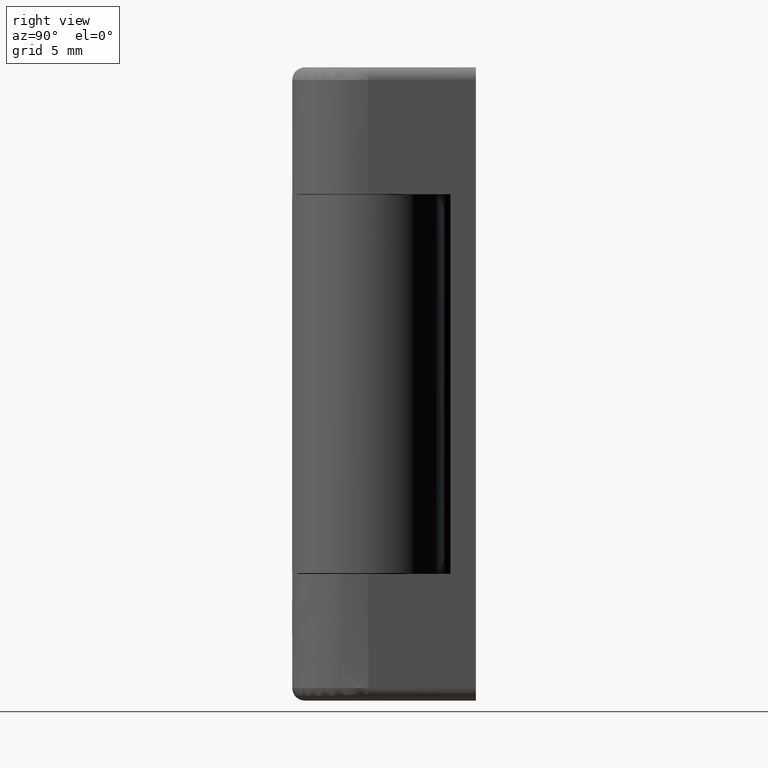
[diagram: clean part render]
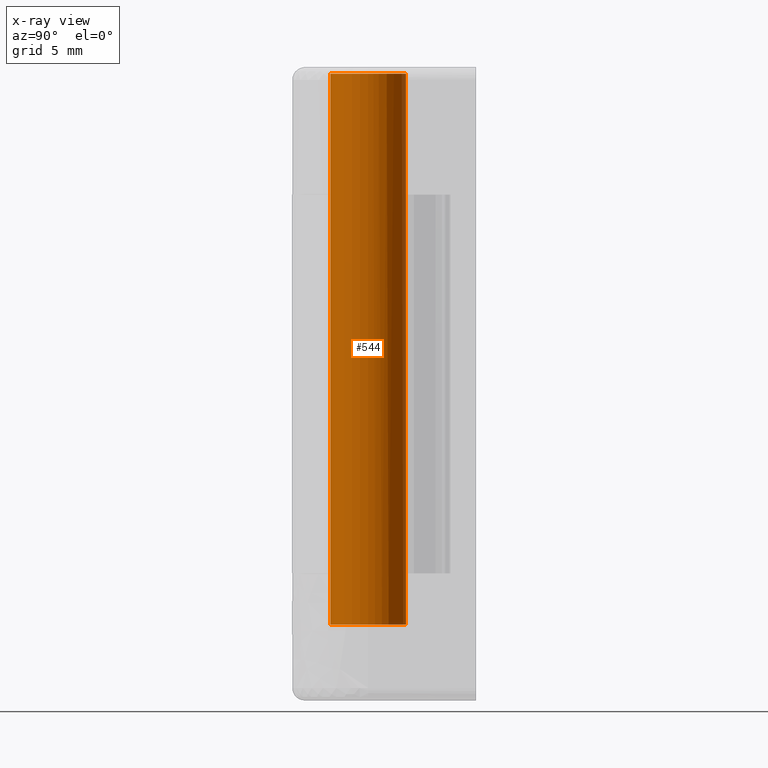
[diagram: x-ray — body ghosted, one internal face saturated and labeled with its STEP entity id]
A machine part, right view, then the same camera in x-ray: the body is ghosted and one INTERNAL B-rep face — a face not visible from any outside direction — is saturated and labeled: STEP entity #544.
In plain terms, the highlighted face is a freeform B-spline surface patch.
Its self-contained STEP definition (entity closure, byte-faithful):
#70=CARTESIAN_POINT('',(2.208236022317948,2.030687979414606,49.499999999999737));
#71=VERTEX_POINT('',#70);
#72=CARTESIAN_POINT('',(3.0,0.0,49.500000000000000));
#73=VERTEX_POINT('',#72);
#74=CARTESIAN_POINT('',(2.208236022317949,2.030687979414606,49.499999999999737));
#75=CARTESIAN_POINT('',(3.000000000000000,1.169698130463886,49.499999999999993));
#76=CARTESIAN_POINT('',(3.0,0.0,49.500000000000000));
#84=(BOUNDED_CURVE()B_SPLINE_CURVE(2,(#74,#75,#76),.UNSPECIFIED.,.F.,.U.)B_SPLINE_CURVE_WITH_KNOTS((3,3),(0.381317214287513,0.500000000000000),.UNSPECIFIED.)CURVE()GEOMETRIC_REPRESENTATION_ITEM()RATIONAL_B_SPLINE_CURVE((0.853927424103483,0.860954467499689,1.0))REPRESENTATION_ITEM(''));
#85=EDGE_CURVE('',#71,#73,#84,.T.);
#143=CARTESIAN_POINT('',(0.026179607174745,2.999885769279031,49.499999999907558));
#144=VERTEX_POINT('',#143);
#150=CARTESIAN_POINT('',(-0.183145618649427,2.994404395262857,49.500000000000000));
#151=VERTEX_POINT('',#150);
#152=CARTESIAN_POINT('',(-0.183145618649427,2.994404395262857,49.500000000000000));
#153=CARTESIAN_POINT('',(-0.091658289940749,3.000000000000000,49.500000000000000));
#154=CARTESIAN_POINT('',(0.0,3.0,49.500000000000000));
#155=CARTESIAN_POINT('',(0.013090053140961,3.000000000000000,49.500000000000000));
#156=CARTESIAN_POINT('',(0.026179607174745,2.999885769279030,49.499999999907558));
#164=(BOUNDED_CURVE()B_SPLINE_CURVE(2,(#152,#153,#154,#155,#156),.UNSPECIFIED.,.F.,.U.)B_SPLINE_CURVE_WITH_KNOTS((3,2,3),(0.239332962236799,0.250000000000000,0.251539894414703),.UNSPECIFIED.)CURVE()GEOMETRIC_REPRESENTATION_ITEM()RATIONAL_B_SPLINE_CURVE((0.976072041662122,0.987502787897325,1.0,0.998195901472980,0.996414027915922))REPRESENTATION_ITEM(''));
#165=EDGE_CURVE('',#151,#144,#164,.T.);
#182=CARTESIAN_POINT('',(0.183145618649427,-2.994404395262857,49.500000000000000));
#183=VERTEX_POINT('',#182);
#199=CARTESIAN_POINT('',(3.0,0.0,49.500000000000000));
#200=CARTESIAN_POINT('',(3.000000000000001,-2.822118200632362,49.500000000000000));
#201=CARTESIAN_POINT('',(0.183145618649427,-2.994404395262857,49.500000000000007));
#209=(BOUNDED_CURVE()B_SPLINE_CURVE(2,(#199,#200,#201),.UNSPECIFIED.,.F.,.U.)B_SPLINE_CURVE_WITH_KNOTS((3,3),(0.500000000000000,0.739332962236798),.UNSPECIFIED.)CURVE()GEOMETRIC_REPRESENTATION_ITEM()RATIONAL_B_SPLINE_CURVE((1.0,0.719603993289223,0.976072041662121))REPRESENTATION_ITEM(''));
#210=EDGE_CURVE('',#73,#183,#209,.T.);
#229=CARTESIAN_POINT('',(0.026179607174745,2.999885769279031,49.499999999907558));
#230=CARTESIAN_POINT('',(1.327406925523010,2.988530129824704,49.500000000000007));
#231=CARTESIAN_POINT('',(2.208236022317949,2.030687979414606,49.499999999999737));
#239=(BOUNDED_CURVE()B_SPLINE_CURVE(2,(#229,#230,#231),.UNSPECIFIED.,.F.,.U.)B_SPLINE_CURVE_WITH_KNOTS((3,3),(0.251539894414702,0.381317214287513),.UNSPECIFIED.)CURVE()GEOMETRIC_REPRESENTATION_ITEM()RATIONAL_B_SPLINE_CURVE((0.996414027915922,0.846243488702786,0.853927424103483))REPRESENTATION_ITEM(''));
#240=EDGE_CURVE('',#144,#71,#239,.T.);
#461=CARTESIAN_POINT('',(-0.183145618604571,2.994404395265600,50.587500000000013));
#462=CARTESIAN_POINT('',(2.811258776661029,3.177550013870171,50.587500000000006));
#463=CARTESIAN_POINT('',(2.994404395265600,0.183145618604571,50.587500000000013));
#464=CARTESIAN_POINT('',(3.177550013870171,-2.811258776661029,50.587500000000006));
#465=CARTESIAN_POINT('',(0.183145618604571,-2.994404395265600,50.587500000000013));
#466=CARTESIAN_POINT('',(-0.183145618604571,2.994404395265600,4.885312499999870));
#467=CARTESIAN_POINT('',(2.811258776661029,3.177550013870171,4.885312499999871));
#468=CARTESIAN_POINT('',(2.994404395265600,0.183145618604571,4.885312499999870));
#469=CARTESIAN_POINT('',(3.177550013870171,-2.811258776661029,4.885312499999871));
#470=CARTESIAN_POINT('',(0.183145618604571,-2.994404395265600,4.885312499999870));
#478=(BOUNDED_SURFACE()B_SPLINE_SURFACE(2,1,((#461,#466),(#462,#467),(#463,#468),(#464,#469),(#465,#470)),.UNSPECIFIED.,.F.,.F.,.U.)B_SPLINE_SURFACE_WITH_KNOTS((3,2,3),(2,2),(0.0,4.970562748477139,9.941125496954278),(0.0,45.702187500000143),.UNSPECIFIED.)GEOMETRIC_REPRESENTATION_ITEM()RATIONAL_B_SPLINE_SURFACE(((1.0,1.0),(0.707106781186548,0.707106781186548),(1.0,1.0),(0.707106781186548,0.707106781186548),(1.0,1.0)))REPRESENTATION_ITEM('')SURFACE());
#479=CARTESIAN_POINT('',(-0.183145618649427,2.994404395262857,5.999999999999870));
#480=VERTEX_POINT('',#479);
#481=CARTESIAN_POINT('',(2.529120146539962,1.613552380432464,6.000000000005469));
#482=VERTEX_POINT('',#481);
#483=CARTESIAN_POINT('',(-0.183145618649427,2.994404395262857,5.999999999999869));
#484=CARTESIAN_POINT('',(-0.091658289940749,3.000000000000000,5.999999999999869));
#485=CARTESIAN_POINT('',(0.0,3.0,5.999999999999870));
#486=CARTESIAN_POINT('',(1.644580967904003,3.0,5.999999999999870));
#487=CARTESIAN_POINT('',(2.529120146539962,1.613552380432464,6.000000000005469));
#495=(BOUNDED_CURVE()B_SPLINE_CURVE(2,(#483,#484,#485,#486,#487),.UNSPECIFIED.,.F.,.U.)B_SPLINE_CURVE_WITH_KNOTS((3,2,3),(0.239332962236799,0.250000000000000,0.407950112616602),.UNSPECIFIED.)CURVE()GEOMETRIC_REPRESENTATION_ITEM()RATIONAL_B_SPLINE_CURVE((0.976072041662122,0.987502787897325,1.0,0.814949932415105,0.863729296948161))REPRESENTATION_ITEM(''));
#496=EDGE_CURVE('',#480,#482,#495,.T.);
#497=ORIENTED_EDGE('',*,*,#496,.F.);
#498=CARTESIAN_POINT('',(-0.183145618649427,2.994404395262857,49.500000000000000));
#499=CARTESIAN_POINT('',(-0.183145618649427,2.994404395262857,5.999999999999870));
#500=QUASI_UNIFORM_CURVE('',1,(#498,#499),.UNSPECIFIED.,.F.,.U.);
#501=EDGE_CURVE('',#151,#480,#500,.T.);
#502=ORIENTED_EDGE('',*,*,#501,.F.);
#503=ORIENTED_EDGE('',*,*,#165,.T.);
#504=ORIENTED_EDGE('',*,*,#240,.T.);
#505=ORIENTED_EDGE('',*,*,#85,.T.);
#506=ORIENTED_EDGE('',*,*,#210,.T.);
#507=CARTESIAN_POINT('',(0.209261452899114,-2.992578198232760,6.000000000000535));
#508=VERTEX_POINT('',#507);
#509=CARTESIAN_POINT('',(0.183145618649427,-2.994404395262857,49.500000000000000));
#510=CARTESIAN_POINT('',(0.209261452899114,-2.992578198232760,6.000000000000535));
#511=QUASI_UNIFORM_CURVE('',1,(#509,#510),.UNSPECIFIED.,.F.,.U.);
#512=EDGE_CURVE('',#183,#508,#511,.T.);
#513=ORIENTED_EDGE('',*,*,#512,.T.);
#514=CARTESIAN_POINT('',(3.0,0.0,5.999999999999870));
#515=VERTEX_POINT('',#514);
#516=CARTESIAN_POINT('',(3.0,0.0,5.999999999999870));
#517=CARTESIAN_POINT('',(2.999996015830825,-2.797488282135039,6.000000000000205));
#518=CARTESIAN_POINT('',(0.209261452899114,-2.992578198232760,6.000000000000535));
#526=(BOUNDED_CURVE()B_SPLINE_CURVE(2,(#516,#517,#518),.UNSPECIFIED.,.F.,.U.)B_SPLINE_CURVE_WITH_KNOTS((3,3),(0.500000000000000,0.737829682996674),.UNSPECIFIED.)CURVE()GEOMETRIC_REPRESENTATION_ITEM()RATIONAL_B_SPLINE_CURVE((1.0,0.721365194470884,0.972871408708405))REPRESENTATION_ITEM(''));
#527=EDGE_CURVE('',#515,#508,#526,.T.);
#528=ORIENTED_EDGE('',*,*,#527,.F.);
#529=CARTESIAN_POINT('',(2.529120146539962,1.613552380432463,6.000000000005469));
#530=CARTESIAN_POINT('',(3.000000000000000,0.875484166254727,5.999999999999871));
#531=CARTESIAN_POINT('',(3.0,0.0,5.999999999999870));
#539=(BOUNDED_CURVE()B_SPLINE_CURVE(2,(#529,#530,#531),.UNSPECIFIED.,.F.,.U.)B_SPLINE_CURVE_WITH_KNOTS((3,3),(0.407950112616601,0.500000000000000),.UNSPECIFIED.)CURVE()GEOMETRIC_REPRESENTATION_ITEM()RATIONAL_B_SPLINE_CURVE((0.863729296948161,0.892156848771442,1.0))REPRESENTATION_ITEM(''));
#540=EDGE_CURVE('',#482,#515,#539,.T.);
#541=ORIENTED_EDGE('',*,*,#540,.F.);
#542=EDGE_LOOP('',(#497,#502,#503,#504,#505,#506,#513,#528,#541));
#543=FACE_OUTER_BOUND('',#542,.T.);
#544=ADVANCED_FACE('',(#543),#478,.T.);